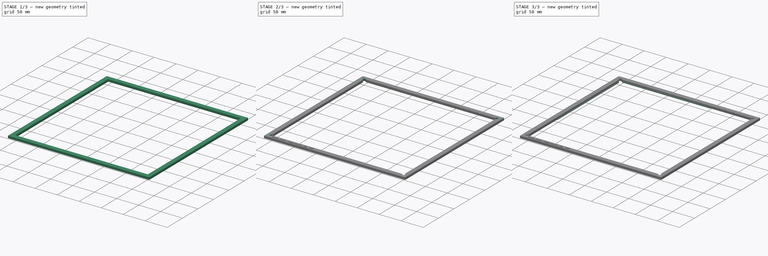
[diagram: build sequence overview — one tinted view per stage of 3, left to right]
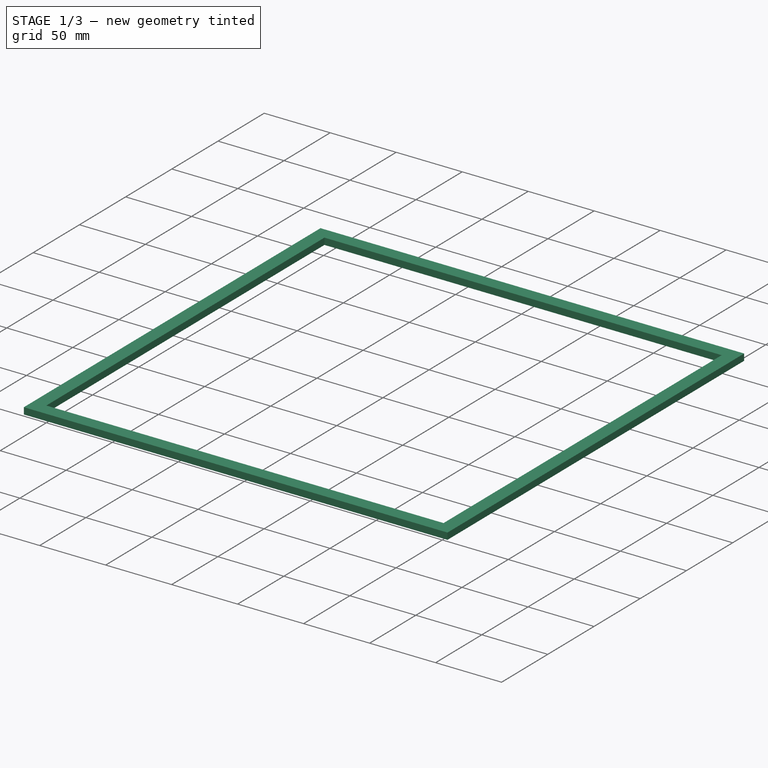
[diagram: stage 1 of 3 — iso view after this stage's code; geometry added in this stage tinted green]
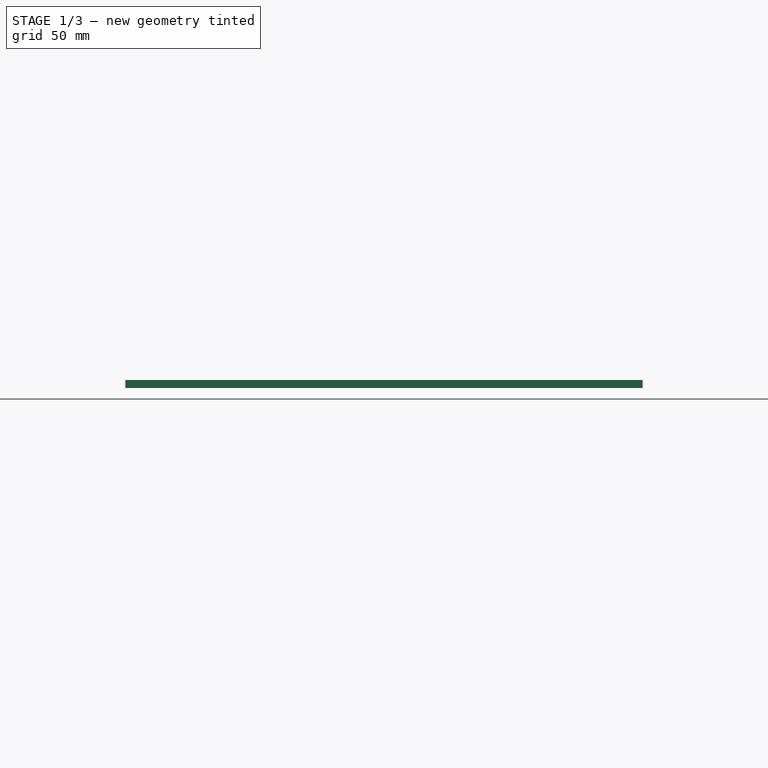
[diagram: stage 1 of 3 — front view after this stage's code; geometry added in this stage tinted green]
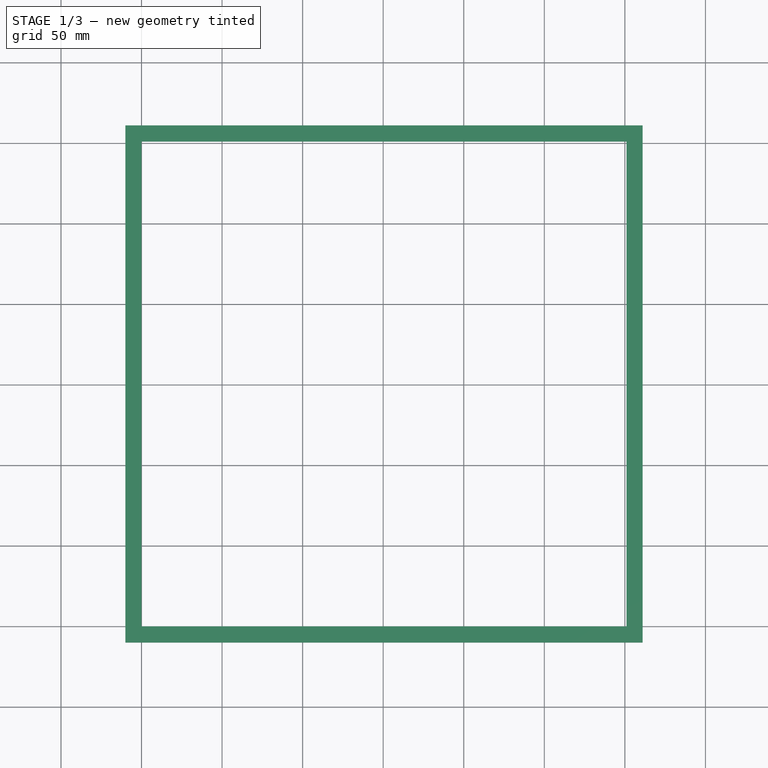
[diagram: stage 1 of 3 — top view after this stage's code; geometry added in this stage tinted green]
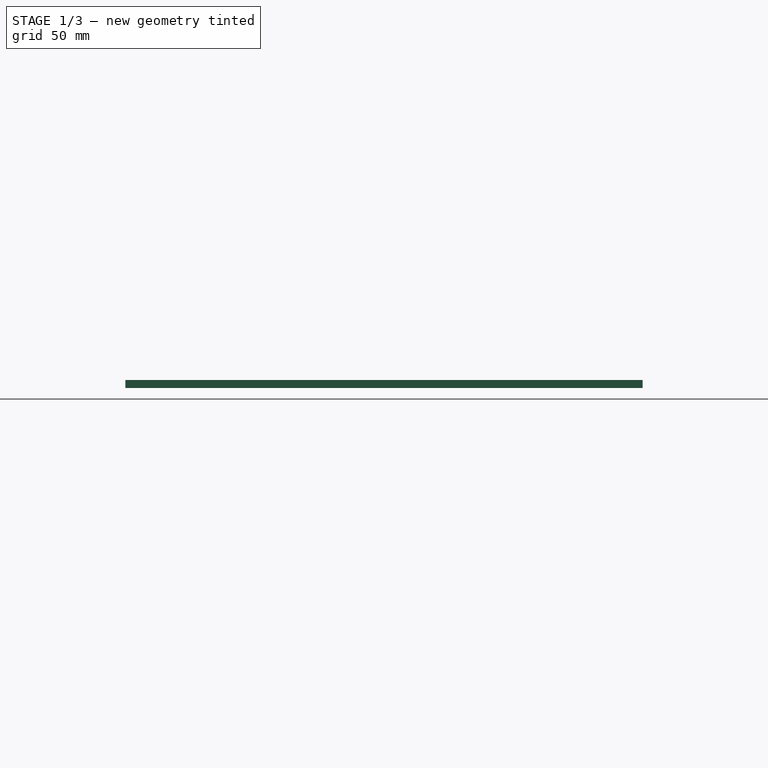
[diagram: stage 1 of 3 — right view after this stage's code; geometry added in this stage tinted green]
FCSTD DOCUMENT  (FreeCAD 0.16R6721 (Git))
Label: heat_pad_alignment_jig_TAZ
License: CreativeCommons Attribution-ShareAlike
LicenseURL: http://creativecommons.org/licenses/by-sa/4.0/
objects: Sketcher::SketchObject×4, PartDesign::Pad×4, PartDesign::Pocket×1, PartDesign::Fillet×1, Part::Part2DObjectPython×1, Part::Cut×1
note: 17 computed .brp shape members not serialized (recipe doc carries the construction recipe); baked Part::Feature solids carry a one-line shape summary decoded from their .brp

FEATURE [Sketcher::SketchObject] Sketch
  sketch-geometry (8):
    g0: LineSegment StartX=0 StartY=0 StartZ=0 EndX=301 EndY=0 EndZ=0
    g1: LineSegment StartX=301 StartY=0 StartZ=0 EndX=301 EndY=301 EndZ=0
    g2: LineSegment StartX=301 StartY=301 StartZ=0 EndX=0 EndY=301 EndZ=0
    g3: LineSegment StartX=0 StartY=301 StartZ=0 EndX=0 EndY=0 EndZ=0
    g4: LineSegment StartX=-10 StartY=-10 StartZ=0 EndX=311 EndY=-10 EndZ=0
    g5: LineSegment StartX=311 StartY=-10 StartZ=0 EndX=311 EndY=311 EndZ=0
    g6: LineSegment StartX=311 StartY=311 StartZ=0 EndX=-10 EndY=311 EndZ=0
    g7: LineSegment StartX=-10 StartY=311 StartZ=0 EndX=-10 EndY=-10 EndZ=0
  constraints (23):
    c: Coincident(g0,g1)
    c: Coincident(g1,g2)
    c: Coincident(g2,g3)
    c: Coincident(g3,g0)
    c: Horizontal(g0)
    c: Horizontal(g2)
    c: Vertical(g1)
    c: Vertical(g3)
    c: Coincident(g0,g-1)
    c: Equal(g3,g0)
    c: DistanceY(g3,g3) = 301
    c: Coincident(g4,g5)
    c: Coincident(g5,g6)
    c: Coincident(g6,g7)
    c: Coincident(g7,g4)
    c: Horizontal(g4)
    c: Horizontal(g6)
    c: Vertical(g5)
    c: Vertical(g7)
    c: Equal(g5,g4)
    c: DistanceY(g4,g-1) = 10
    c: DistanceX(g4,g-1) = 10
    c: DistanceX(g1,g5) = 10
FEATURE [PartDesign::Pad] Pad
  Length = 5
  Length2 = 100
  Sketch = -> Sketch
  Type = 0
FEATURE [Part::Part2DObjectPython] ShapeString  # Draft 2D object (typed FeaturePython)
  FontFile = <userpath>/Desktop/Titillium-BoldUpright.otf
  Placement = pos=(5.0876,-7.68648,5) rot=(0,0,1;0rad)
  Size = 3
  String = heat_pad_alignment_jig_TAZ
  Tracking = 0
FEATURE [PartDesign::Pad] Pad001
  Length = 2
  Length2 = 100
  Placement = pos=(5.0876,-7.68648,5) rot=(0,0,1;0rad)
  Reversed = true
  Sketch = -> ShapeString
  Type = 0
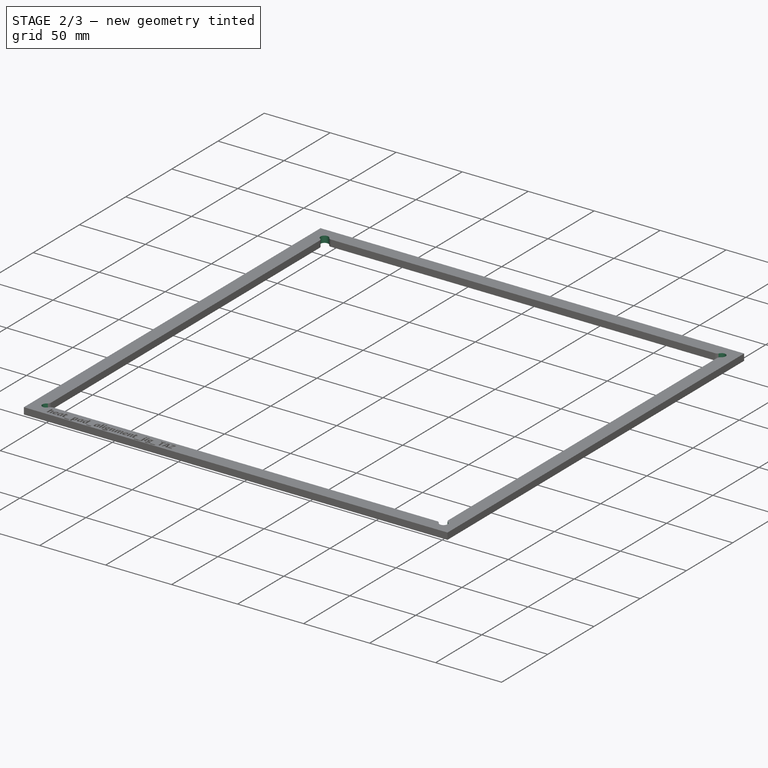
[diagram: stage 2 of 3 — iso view after this stage's code; geometry added in this stage tinted green]
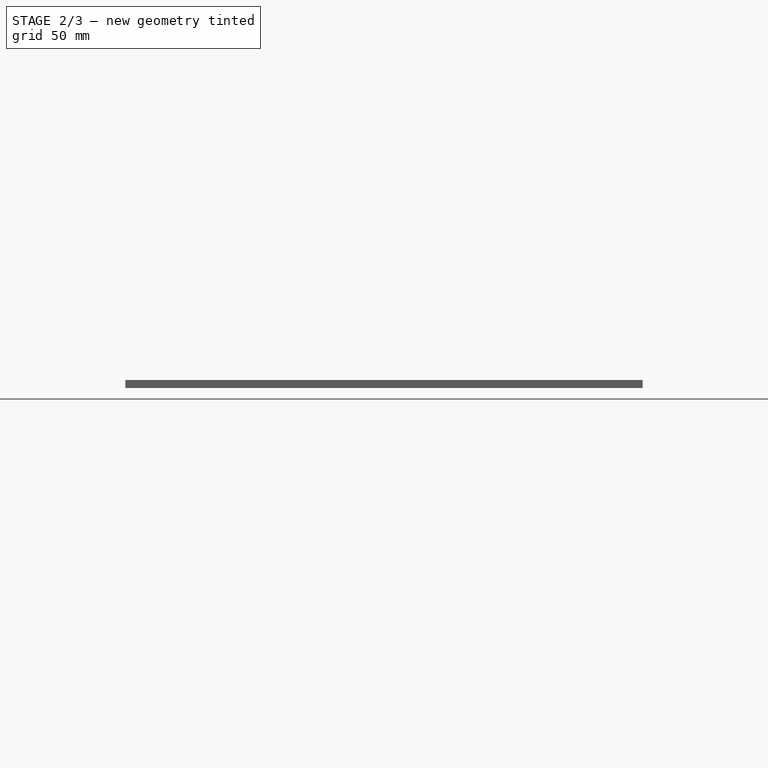
[diagram: stage 2 of 3 — front view after this stage's code; geometry added in this stage tinted green]
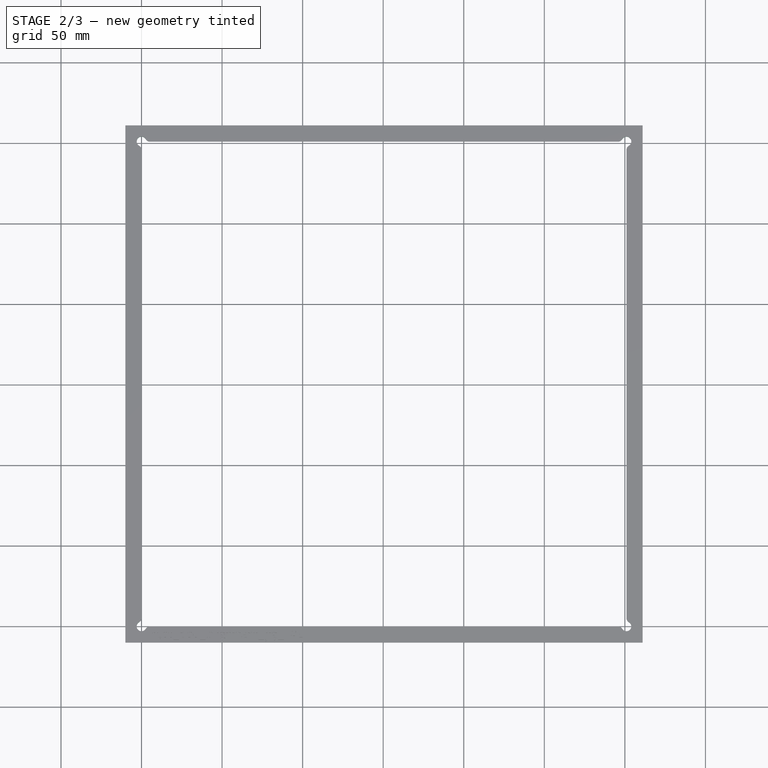
[diagram: stage 2 of 3 — top view after this stage's code; geometry added in this stage tinted green]
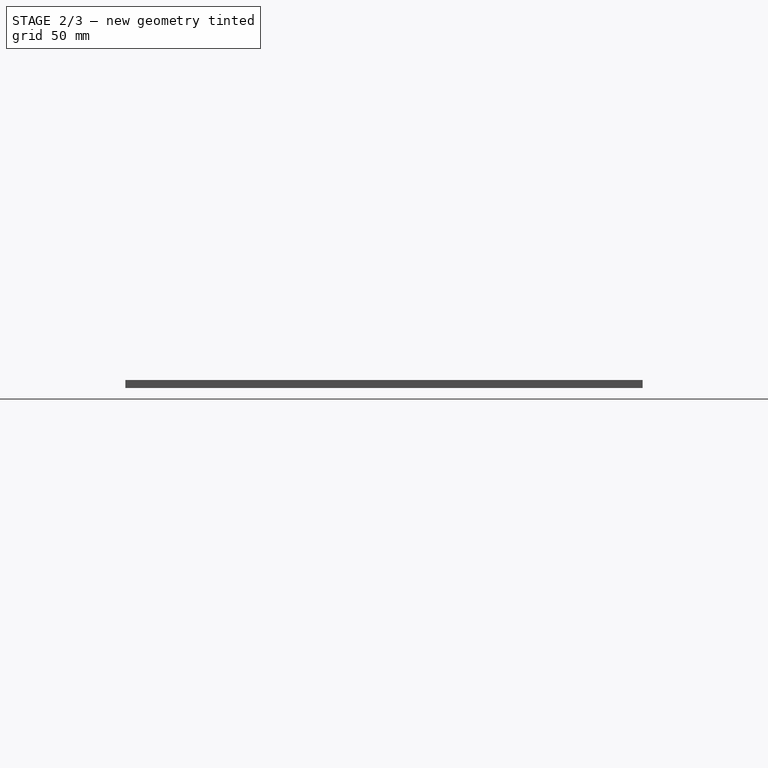
[diagram: stage 2 of 3 — right view after this stage's code; geometry added in this stage tinted green]
FEATURE [Sketcher::SketchObject] Sketch001
  ExternalGeometry = -> [Pad]
  Placement = pos=(0,0,5) rot=(0,0,1;0rad)
  Support = -> Pad [Face10]
  sketch-geometry (4):
    g0: Circle CenterX=0 CenterY=301 CenterZ=0 NormalX=0 NormalY=0 NormalZ=1 Radius=3
    g1: Circle CenterX=301 CenterY=301 CenterZ=0 NormalX=0 NormalY=0 NormalZ=1 Radius=3
    g2: Circle CenterX=301 CenterY=0 CenterZ=0 NormalX=0 NormalY=0 NormalZ=1 Radius=3
    g3: Circle CenterX=0 CenterY=0 CenterZ=0 NormalX=0 NormalY=0 NormalZ=1 Radius=3
  constraints (8):
    c: Coincident(g0,g-3)
    c: Coincident(g1,g-4)
    c: Coincident(g3,g-3)
    c: Coincident(g2,g-4)
    c: Radius(g3) = 3
    c: Equal(g3,g2)
    c: Equal(g3,g1)
    c: Equal(g3,g0)
FEATURE [PartDesign::Pocket] Pocket
  Length = 5
  Sketch = -> Sketch001
  Type = 1
FEATURE [PartDesign::Fillet] Fillet
  Base = -> Pocket [Edge34,Edge33,Edge42,Edge40,Edge39,Edge37,Edge36,Edge35]
  Radius = 3
FEATURE [Part::Cut] Cut
  Base = -> Fillet
  Tool = -> Pad001
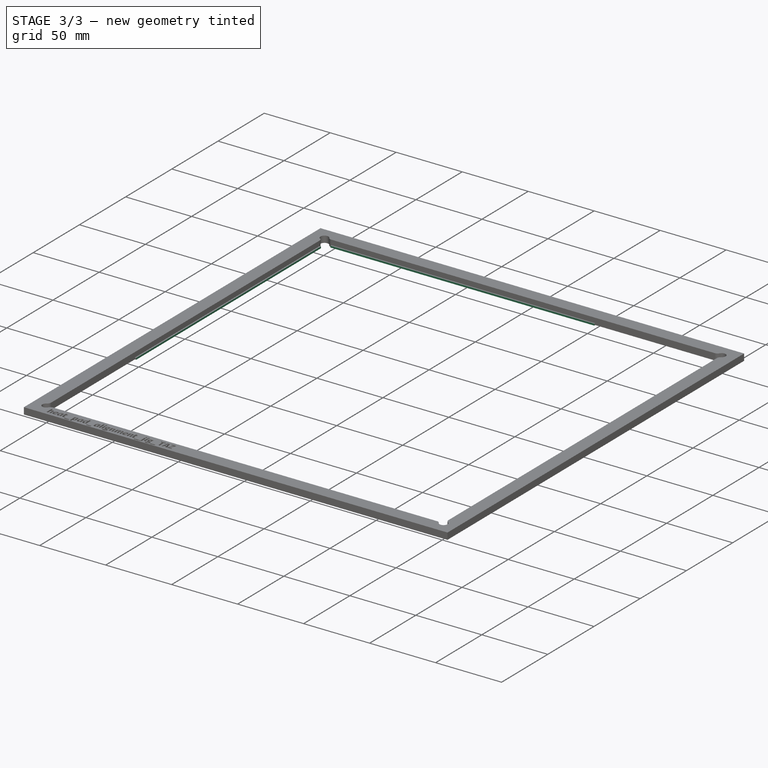
[diagram: stage 3 of 3 — iso view after this stage's code; geometry added in this stage tinted green]
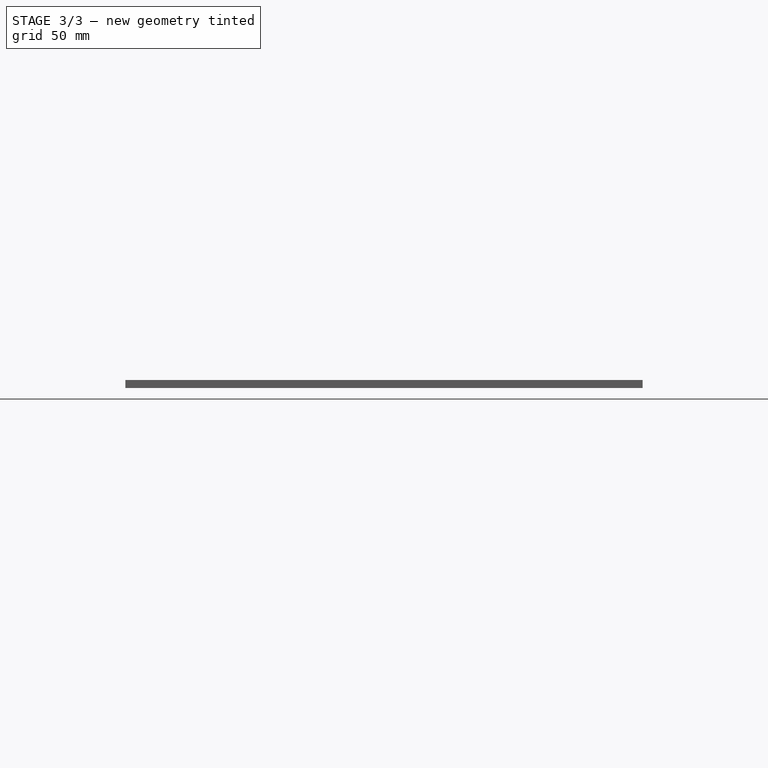
[diagram: stage 3 of 3 — front view after this stage's code; geometry added in this stage tinted green]
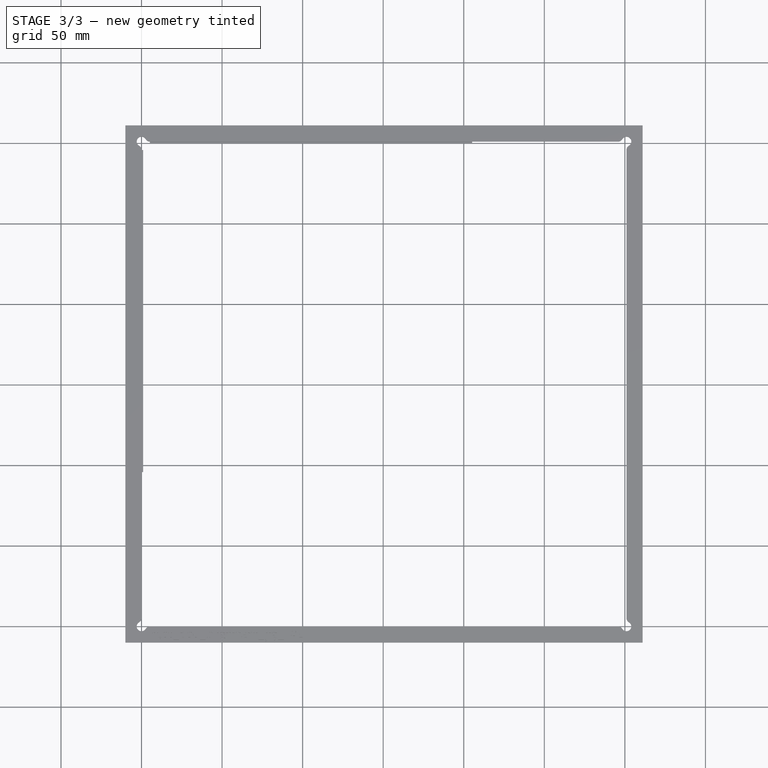
[diagram: stage 3 of 3 — top view after this stage's code; geometry added in this stage tinted green]
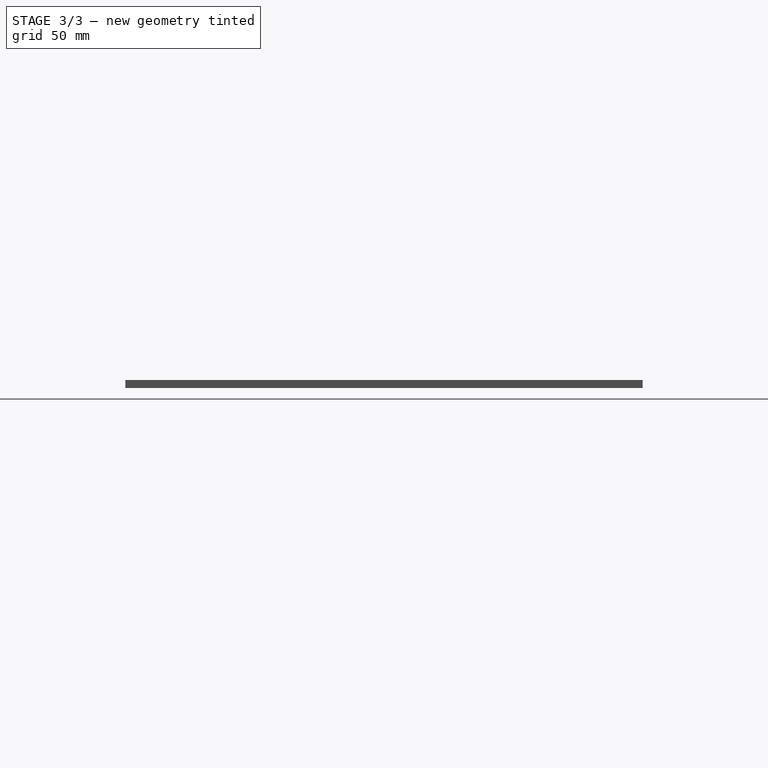
[diagram: stage 3 of 3 — right view after this stage's code; geometry added in this stage tinted green]
FEATURE [Sketcher::SketchObject] Sketch002
  ExternalGeometry = -> [Cut]
  Placement = pos=(0,0,0) rot=(0.57735,0.57735,0.57735;2.0944rad)
  Support = -> Cut [Face5]
  sketch-geometry (4):
    g0: LineSegment StartX=295.804 StartY=0 StartZ=0 EndX=95.8038 EndY=0 EndZ=0
    g1: LineSegment StartX=95.8038 StartY=0 StartZ=0 EndX=95.8038 EndY=1.25 EndZ=0
    g2: LineSegment StartX=95.8038 StartY=1.25 StartZ=0 EndX=295.804 EndY=1.25 EndZ=0
    g3: LineSegment StartX=295.804 StartY=1.25 StartZ=0 EndX=295.804 EndY=0 EndZ=0
  constraints (11):
    c: Coincident(g0,g1)
    c: Coincident(g1,g2)
    c: Coincident(g2,g3)
    c: Coincident(g3,g0)
    c: Horizontal(g0)
    c: Horizontal(g2)
    c: Vertical(g1)
    c: Vertical(g3)
    c: Coincident(g0,g-4)
    c: DistanceY(g0,g2) = 1.25
    c: DistanceX(g2,g2) = 200
FEATURE [PartDesign::Pad] Pad002
  Length = 1
  Length2 = 100
  Sketch = -> Sketch002
  Type = 0
FEATURE [Sketcher::SketchObject] Sketch003
  ExternalGeometry = -> [Pad002]
  Placement = pos=(0,301,0) rot=(1,0,0;1.5708rad)
  Support = -> Pad002 [Face23]
  sketch-geometry (4):
    g0: LineSegment StartX=5.19615 StartY=0 StartZ=0 EndX=205.196 EndY=0 EndZ=0
    g1: LineSegment StartX=205.196 StartY=0 StartZ=0 EndX=205.196 EndY=1.25 EndZ=0
    g2: LineSegment StartX=205.196 StartY=1.25 StartZ=0 EndX=5.19615 EndY=1.25 EndZ=0
    g3: LineSegment StartX=5.19615 StartY=1.25 StartZ=0 EndX=5.19615 EndY=0 EndZ=0
  constraints (11):
    c: Coincident(g0,g1)
    c: Coincident(g1,g2)
    c: Coincident(g2,g3)
    c: Coincident(g3,g0)
    c: Horizontal(g0)
    c: Horizontal(g2)
    c: Vertical(g1)
    c: Vertical(g3)
    c: Coincident(g0,g-4)
    c: DistanceX(g2,g2) = 200
    c: DistanceY(g0,g2) = 1.25
FEATURE [PartDesign::Pad] Pad003
  Length = 1
  Length2 = 100
  Sketch = -> Sketch003
  Type = 0
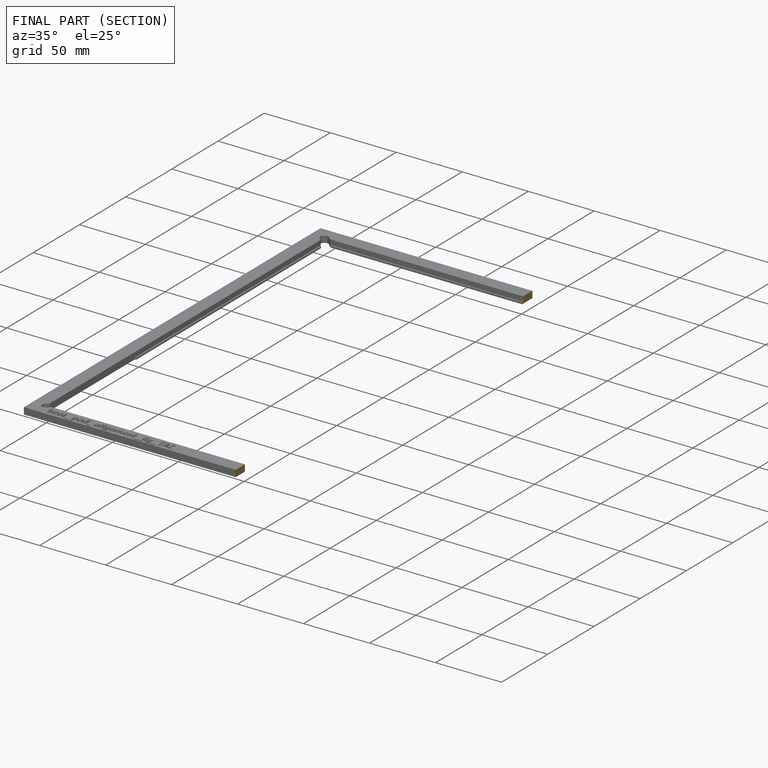
[diagram: finished part — half-section view (interior)]
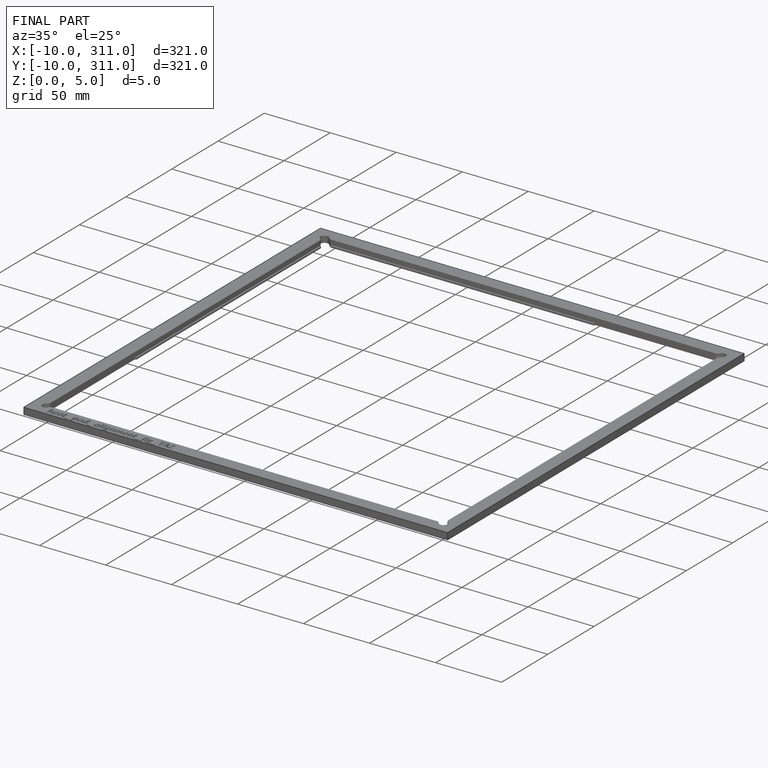
[diagram: finished part — iso view with bounding-box wireframe]
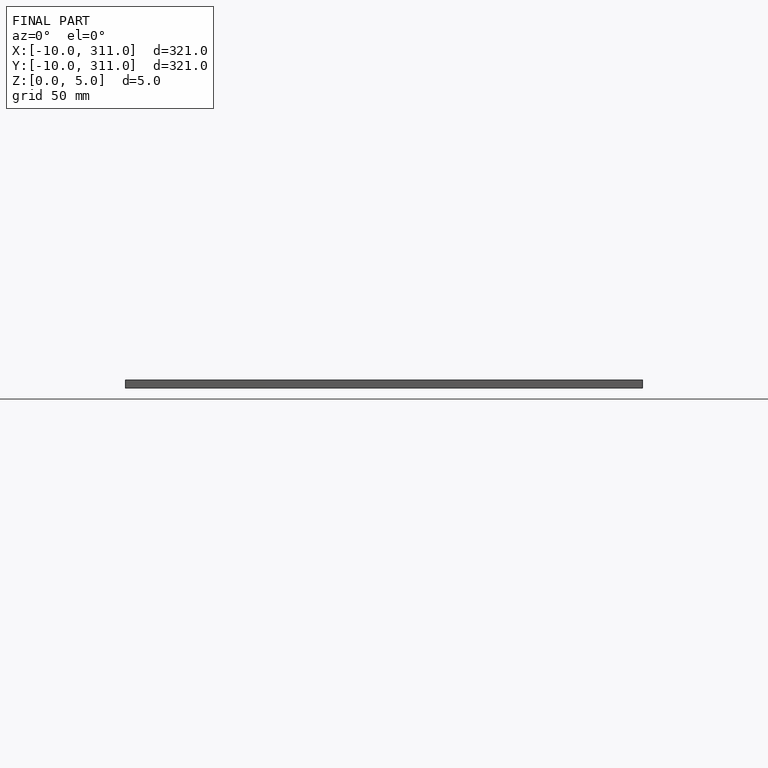
[diagram: finished part — front view with bounding-box wireframe]
